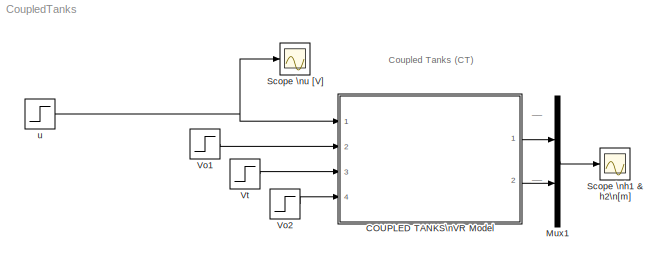
MODEL CoupledTanks
KIND model
CONFIG InitFcn = g = 9.81; %gravitational constant\n\n% showVR = 1; %show VR world\n% h1_init = 0; %initial condition\n% h2_init = 0; %initial condition
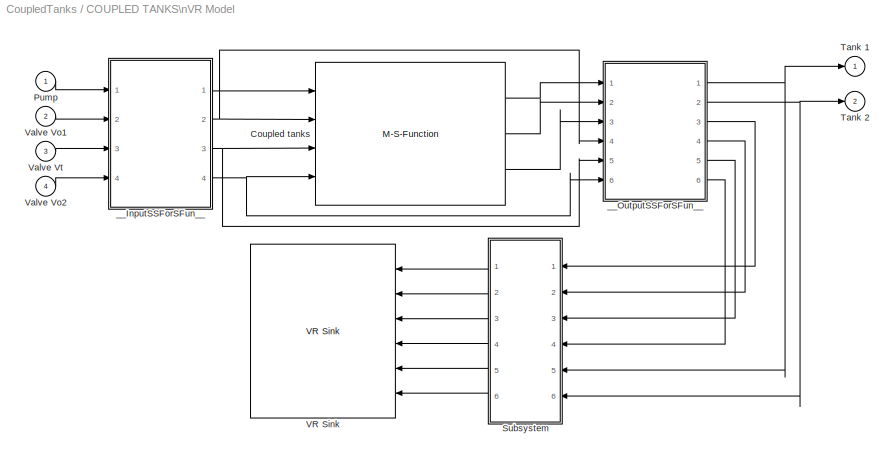
BLOCK [SubSystem] COUPLED TANKS\nVR Model
  FunctionWithSeparateData = off
  MaskCallbackString = if strcmp('off',get_param(gcb,'showVR'))\n    vrclose all;\nelse\n    if exist('figureVR')==0\n        figureVR = vrfigure;\n    end  \n    if exist('worldVR')==0\n        worldVR = vrworld('CoupledTanks_VR.WRL');\n    end\n	if isvalid(figureVR)==0\n        open(worldVR);\n        figureVR = vrfigure(worldVR,[650 80 550 350]);\n	end\nend||
  MaskDescription = Coupled Tanks (CT) in laboratory K26 - Virtual Reality\nReal-Time Workshop generated S-function.
  MaskDisplay = image(imread('CoupledTanks_Image.jpg'));\nport_label ('input',1,'u [V]');\nport_label ('input',2,'Vo1 [-]');\nport_label ('input',3,'Vt [-]');\nport_label ('input',4,'Vo2 [-]');\nport_label ('output',1,'h1 [m]');\nport_label ('output',2,'h2 [m]');
  MaskEnableString = on,on,on
  MaskHelp = Couple Tanks in laboratory K26 - Virtual Reality. <br><br>\n\n\nThis is a&nbsp;virtual model of the Coupled Tanks apparatus in Laboratory of automatic control \ntheory&nbsp;26 (<a href=\"http://support.dce.felk.cvut.cz/lab26/\" target=\"_blank\">http://support.dce.felk.cvut.cz/lab26/</a>), \nwhich consists of a&nbsp;gear-pump, two tanks (left and right), inflow and outflow pipes and transfer (V<su...<+1395ch>
  MaskHideContents = off
  MaskIconFrame = on
  MaskIconOpaque = on
  MaskIconRotate = none
  MaskIconUnits = autoscale
  MaskPortRotate = default
  MaskPromptString = Show VirtualWorld?|Initial fluid level in the left tank 1   h1(0)  [cm]|Initial fluid  level in the right tank 2   h2 (0) [cm]
  MaskStyleString = checkbox,edit,edit
  MaskToolTipString = on,on,on
  MaskTunableValueString = on,on,on
  MaskType = Coupled Tanks (CT) in laboratory K26
  MaskValueString = off|0|0
  MaskVariables = showVR=@1;sfcnParam1=@2;sfcnParam2=@3;
  MaskVisibilityString = on,on,on
  MinAlgLoopOccurrences = off
  Opaque = off
  Ports = [4, 2]
  PropExecContextOutsideSubsystem = off
  RTWSystemCode = Auto
  RequestExecContextInheritance = off
BLOCK [M-S-Function] COUPLED TANKS\nVR Model/Coupled tanks
  FunctionName = CoupledProngTanks
  MaskCallbackString = |
  MaskDisplay = port_label('input',1,'Pump');\nport_label('input',2,'Valve Vo1');\nport_label('input',3,'Valve Vt');\nport_label('input',4,'Valve Vo2');\nport_label('output',1,'Tank 1');\nport_label('output',2,'Tank 2');\nport_label('output',3,'q_i');
  MaskEnableString = on,on
  MaskIconFrame = on
  MaskIconOpaque = on
  MaskIconRotate = none
  MaskIconUnits = autoscale
  MaskPortRotate = default
  MaskPromptString = h1_init|h2_init
  MaskStyleString = edit,edit
  MaskToolTipString = on,on
  MaskTunableValueString = on,on
  MaskValueString = sfcnParam1|sfcnParam2
  MaskVariables = h10=@1;h20=@2;
  MaskVisibilityString = on,on
  Parameters = h10 h20
  Ports = [4, 3]
BLOCK [Inport] COUPLED TANKS\nVR Model/Pump
  IconDisplay = Port number
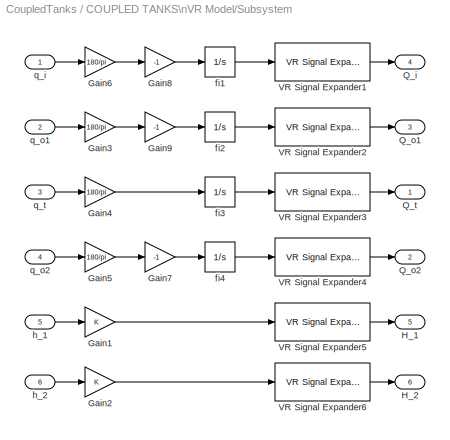
BLOCK [SubSystem] COUPLED TANKS\nVR Model/Subsystem
  FunctionWithSeparateData = off
  MaskHideContents = off
  MinAlgLoopOccurrences = off
  Opaque = off
  Ports = [6, 6]
  PropExecContextOutsideSubsystem = off
  RTWSystemCode = Auto
  RequestExecContextInheritance = off
BLOCK [Gain] COUPLED TANKS\nVR Model/Subsystem/Gain1
  OutDataTypeMode = Inherit via internal rule
  OutDataTypeStr = Inherit: Inherit via internal rule
  ParamDataTypeStr = Inherit: Inherit via internal rule
  ParameterDataTypeMode = Inherit via internal rule
  SaturateOnIntegerOverflow = off
BLOCK [Gain] COUPLED TANKS\nVR Model/Subsystem/Gain2
  OutDataTypeMode = Inherit via internal rule
  OutDataTypeStr = Inherit: Inherit via internal rule
  ParamDataTypeStr = Inherit: Inherit via internal rule
  ParameterDataTypeMode = Inherit via internal rule
  SaturateOnIntegerOverflow = off
BLOCK [Gain] COUPLED TANKS\nVR Model/Subsystem/Gain3
  Gain = 180/pi
  OutDataTypeMode = Inherit via internal rule
  OutDataTypeStr = Inherit: Inherit via internal rule
  ParamDataTypeStr = Inherit: Inherit via internal rule
  ParameterDataTypeMode = Inherit via internal rule
  SaturateOnIntegerOverflow = off
BLOCK [Gain] COUPLED TANKS\nVR Model/Subsystem/Gain4
  Gain = 180/pi
  OutDataTypeMode = Inherit via internal rule
  OutDataTypeStr = Inherit: Inherit via internal rule
  ParamDataTypeStr = Inherit: Inherit via internal rule
  ParameterDataTypeMode = Inherit via internal rule
  SaturateOnIntegerOverflow = off
BLOCK [Gain] COUPLED TANKS\nVR Model/Subsystem/Gain5
  Gain = 180/pi
  OutDataTypeMode = Inherit via internal rule
  OutDataTypeStr = Inherit: Inherit via internal rule
  ParamDataTypeStr = Inherit: Inherit via internal rule
  ParameterDataTypeMode = Inherit via internal rule
  SaturateOnIntegerOverflow = off
BLOCK [Gain] COUPLED TANKS\nVR Model/Subsystem/Gain6
  Gain = 180/pi
  OutDataTypeMode = Inherit via internal rule
  OutDataTypeStr = Inherit: Inherit via internal rule
  ParamDataTypeStr = Inherit: Inherit via internal rule
  ParameterDataTypeMode = Inherit via internal rule
  SaturateOnIntegerOverflow = off
BLOCK [Gain] COUPLED TANKS\nVR Model/Subsystem/Gain7
  Gain = -1
  OutDataTypeMode = Inherit via internal rule
  OutDataTypeStr = Inherit: Inherit via internal rule
  ParamDataTypeStr = Inherit: Inherit via internal rule
  ParameterDataTypeMode = Inherit via internal rule
  SaturateOnIntegerOverflow = off
BLOCK [Gain] COUPLED TANKS\nVR Model/Subsystem/Gain8
  Gain = -1
  OutDataTypeMode = Inherit via internal rule
  OutDataTypeStr = Inherit: Inherit via internal rule
  ParamDataTypeStr = Inherit: Inherit via internal rule
  ParameterDataTypeMode = Inherit via internal rule
  SaturateOnIntegerOverflow = off
BLOCK [Gain] COUPLED TANKS\nVR Model/Subsystem/Gain9
  Gain = -1
  OutDataTypeMode = Inherit via internal rule
  OutDataTypeStr = Inherit: Inherit via internal rule
  ParamDataTypeStr = Inherit: Inherit via internal rule
  ParameterDataTypeMode = Inherit via internal rule
  SaturateOnIntegerOverflow = off
BLOCK [Outport] COUPLED TANKS\nVR Model/Subsystem/H_1
  IconDisplay = Port number
  Port = 5
BLOCK [Outport] COUPLED TANKS\nVR Model/Subsystem/H_2
  IconDisplay = Port number
  Port = 6
BLOCK [Outport] COUPLED TANKS\nVR Model/Subsystem/Q_i
  IconDisplay = Port number
  Port = 4
BLOCK [Outport] COUPLED TANKS\nVR Model/Subsystem/Q_o1
  IconDisplay = Port number
  Port = 3
BLOCK [Outport] COUPLED TANKS\nVR Model/Subsystem/Q_o2
  IconDisplay = Port number
  Port = 2
BLOCK [Outport] COUPLED TANKS\nVR Model/Subsystem/Q_t
  IconDisplay = Port number
BLOCK [Reference] COUPLED TANKS\nVR Model/Subsystem/VR Signal Expander1  REF=vrlib/VR Signal Expander
  Ports = [1, 1]
  SourceBlock = vrlib/VR Signal Expander
  SourceType = VR Signal Expander
  outidx = [4]
  outwidth = 4
BLOCK [Reference] COUPLED TANKS\nVR Model/Subsystem/VR Signal Expander2  REF=vrlib/VR Signal Expander
  Ports = [1, 1]
  SourceBlock = vrlib/VR Signal Expander
  SourceType = VR Signal Expander
  outidx = [4]
  outwidth = 4
BLOCK [Reference] COUPLED TANKS\nVR Model/Subsystem/VR Signal Expander3  REF=vrlib/VR Signal Expander
  Ports = [1, 1]
  SourceBlock = vrlib/VR Signal Expander
  SourceType = VR Signal Expander
  outidx = [4]
  outwidth = 4
BLOCK [Reference] COUPLED TANKS\nVR Model/Subsystem/VR Signal Expander4  REF=vrlib/VR Signal Expander
  Ports = [1, 1]
  SourceBlock = vrlib/VR Signal Expander
  SourceType = VR Signal Expander
  outidx = [4]
  outwidth = 4
BLOCK [Reference] COUPLED TANKS\nVR Model/Subsystem/VR Signal Expander5  REF=vrlib/VR Signal Expander
  Ports = [1, 1]
  SourceBlock = vrlib/VR Signal Expander
  SourceType = VR Signal Expander
  outidx = [2]
  outwidth = 3
BLOCK [Reference] COUPLED TANKS\nVR Model/Subsystem/VR Signal Expander6  REF=vrlib/VR Signal Expander
  Ports = [1, 1]
  SourceBlock = vrlib/VR Signal Expander
  SourceType = VR Signal Expander
  outidx = [2]
  outwidth = 3
BLOCK [Integrator] COUPLED TANKS\nVR Model/Subsystem/fi1
  Ports = [1, 1]
BLOCK [Integrator] COUPLED TANKS\nVR Model/Subsystem/fi2
  Ports = [1, 1]
BLOCK [Integrator] COUPLED TANKS\nVR Model/Subsystem/fi3
  Ports = [1, 1]
BLOCK [Integrator] COUPLED TANKS\nVR Model/Subsystem/fi4
  Ports = [1, 1]
BLOCK [Inport] COUPLED TANKS\nVR Model/Subsystem/h_1
  IconDisplay = Port number
  Port = 5
BLOCK [Inport] COUPLED TANKS\nVR Model/Subsystem/h_2
  IconDisplay = Port number
  Port = 6
BLOCK [Inport] COUPLED TANKS\nVR Model/Subsystem/q_i
  IconDisplay = Port number
BLOCK [Inport] COUPLED TANKS\nVR Model/Subsystem/q_o1
  IconDisplay = Port number
  Port = 2
BLOCK [Inport] COUPLED TANKS\nVR Model/Subsystem/q_o2
  IconDisplay = Port number
  Port = 4
BLOCK [Inport] COUPLED TANKS\nVR Model/Subsystem/q_t
  IconDisplay = Port number
  Port = 3
BLOCK [Outport] COUPLED TANKS\nVR Model/Tank 1
  DataType = double
  IconDisplay = Port number
  OutDataTypeStr = double
  PortDimensions = 1
  SampleTime = [-1 0]
  SignalType = real
BLOCK [Outport] COUPLED TANKS\nVR Model/Tank 2
  DataType = double
  IconDisplay = Port number
  OutDataTypeStr = double
  Port = 2
  PortDimensions = 1
  SampleTime = [-1 0]
  SignalType = real
BLOCK [Reference] COUPLED TANKS\nVR Model/VR Sink  REF=vrlib/VR Sink
  AutoView = off
  FieldsWritten = Valve_t.rotation.4.1.double#Valve_o2.rotation.4.1.double#Valve_o1.rotation.4.1.double#Pump.rotation.4.1.double#water1.scale.3.1.double#water2.scale.3.1.double
  InstantiateOnLoad = on
  Ports = [6]
  RemoteChange = off
  RemoteView = on
  SampleTime = -1
  SourceBlock = vrlib/VR Sink
  SourceType = Virtual Reality Sink
  VideoDimensions = []
  ViewEnable = on
  WorldFileName = CoupledTanks_VR.WRL
BLOCK [Inport] COUPLED TANKS\nVR Model/Valve Vo1
  IconDisplay = Port number
  Port = 2
BLOCK [Inport] COUPLED TANKS\nVR Model/Valve Vo2
  IconDisplay = Port number
  Port = 4
BLOCK [Inport] COUPLED TANKS\nVR Model/Valve Vt
  IconDisplay = Port number
  Port = 3
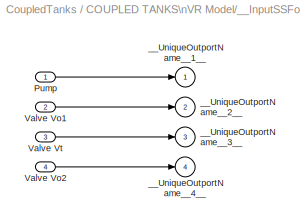
BLOCK [SubSystem] COUPLED TANKS\nVR Model/__InputSSForSFun__
  FunctionWithSeparateData = off
  MaskHideContents = off
  MinAlgLoopOccurrences = off
  Opaque = off
  PermitHierarchicalResolution = ParametersOnly
  Ports = [4, 4]
  PropExecContextOutsideSubsystem = off
  RTWSystemCode = Auto
  RequestExecContextInheritance = off
BLOCK [Inport] COUPLED TANKS\nVR Model/__InputSSForSFun__/Pump
  IconDisplay = Port number
BLOCK [Inport] COUPLED TANKS\nVR Model/__InputSSForSFun__/Valve Vo1
  IconDisplay = Port number
  Port = 2
BLOCK [Inport] COUPLED TANKS\nVR Model/__InputSSForSFun__/Valve Vo2
  IconDisplay = Port number
  Port = 4
BLOCK [Inport] COUPLED TANKS\nVR Model/__InputSSForSFun__/Valve Vt
  IconDisplay = Port number
  Port = 3
BLOCK [Outport] COUPLED TANKS\nVR Model/__InputSSForSFun__/__UniqueOutportName__1__
  IconDisplay = Port number
BLOCK [Outport] COUPLED TANKS\nVR Model/__InputSSForSFun__/__UniqueOutportName__2__
  IconDisplay = Port number
  Port = 2
BLOCK [Outport] COUPLED TANKS\nVR Model/__InputSSForSFun__/__UniqueOutportName__3__
  IconDisplay = Port number
  Port = 3
BLOCK [Outport] COUPLED TANKS\nVR Model/__InputSSForSFun__/__UniqueOutportName__4__
  IconDisplay = Port number
  Port = 4
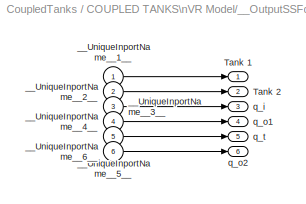
BLOCK [SubSystem] COUPLED TANKS\nVR Model/__OutputSSForSFun__
  FunctionWithSeparateData = off
  MaskHideContents = off
  MinAlgLoopOccurrences = off
  Opaque = off
  PermitHierarchicalResolution = ParametersOnly
  Ports = [6, 6]
  PropExecContextOutsideSubsystem = off
  RTWSystemCode = Auto
  RequestExecContextInheritance = off
BLOCK [Outport] COUPLED TANKS\nVR Model/__OutputSSForSFun__/Tank 1
  DataType = double
  IconDisplay = Port number
  OutDataTypeStr = double
  PortDimensions = 1
  SampleTime = [-1 0]
  SignalType = real
BLOCK [Outport] COUPLED TANKS\nVR Model/__OutputSSForSFun__/Tank 2
  DataType = double
  IconDisplay = Port number
  OutDataTypeStr = double
  Port = 2
  PortDimensions = 1
  SampleTime = [-1 0]
  SignalType = real
BLOCK [Inport] COUPLED TANKS\nVR Model/__OutputSSForSFun__/__UniqueInportName__1__
  IconDisplay = Port number
BLOCK [Inport] COUPLED TANKS\nVR Model/__OutputSSForSFun__/__UniqueInportName__2__
  IconDisplay = Port number
  Port = 2
BLOCK [Inport] COUPLED TANKS\nVR Model/__OutputSSForSFun__/__UniqueInportName__3__
  IconDisplay = Port number
  Port = 3
BLOCK [Inport] COUPLED TANKS\nVR Model/__OutputSSForSFun__/__UniqueInportName__4__
  IconDisplay = Port number
  Port = 4
BLOCK [Inport] COUPLED TANKS\nVR Model/__OutputSSForSFun__/__UniqueInportName__5__
  IconDisplay = Port number
  Port = 5
BLOCK [Inport] COUPLED TANKS\nVR Model/__OutputSSForSFun__/__UniqueInportName__6__
  IconDisplay = Port number
  Port = 6
BLOCK [Outport] COUPLED TANKS\nVR Model/__OutputSSForSFun__/q_i
  DataType = double
  IconDisplay = Port number
  OutDataTypeStr = double
  Port = 3
  PortDimensions = 1
  SampleTime = [0 1]
  SignalType = real
BLOCK [Outport] COUPLED TANKS\nVR Model/__OutputSSForSFun__/q_o1
  DataType = double
  IconDisplay = Port number
  OutDataTypeStr = double
  Port = 4
  PortDimensions = 1
  SampleTime = [-1 0]
  SignalType = real
BLOCK [Outport] COUPLED TANKS\nVR Model/__OutputSSForSFun__/q_o2
  DataType = double
  IconDisplay = Port number
  OutDataTypeStr = double
  Port = 6
  PortDimensions = 1
  SampleTime = [-1 0]
  SignalType = real
BLOCK [Outport] COUPLED TANKS\nVR Model/__OutputSSForSFun__/q_t
  DataType = double
  IconDisplay = Port number
  OutDataTypeStr = double
  Port = 5
  PortDimensions = 1
  SampleTime = [-1 0]
  SignalType = real
BLOCK [Mux] Mux1
  DisplayOption = bar
  Inputs = 2
  Ports = [2, 1]
BLOCK [Scope] Scope \nh1 & h2\n[m]
  Floating = off
  MaxDataPoints = 500000
  NumInputPorts = 1
  Ports = [1]
  SampleTime = 0
  SaveName = ty
  SaveToWorkspace = on
  TimeRange = 200
  YMax = 25
  YMin = 0
BLOCK [Scope] Scope \nu [V]
  Floating = off
  MaxDataPoints = 500000
  NumInputPorts = 1
  Ports = [1]
  SampleTime = 0
  SaveName = tu
  SaveToWorkspace = on
  TimeRange = 2000
  YMin = 5
BLOCK [Step] Vo1
  After = 0.1
  SampleTime = 0
  Time = 0
BLOCK [Step] Vo2
  After = 0.3
  SampleTime = 0
  Time = 0
BLOCK [Step] Vt
  After = 0.2
  SampleTime = 0
  Time = 0
BLOCK [Step] u
  After = 5*1.05
  Before = 5
  SampleTime = 0
  Time = 1000
ANNOTATION (root): Coupled Tanks (CT)
ANNOTATION (root): __
LINE COUPLED TANKS\nVR Model/Coupled tanks:1 -> COUPLED TANKS\nVR Model/__OutputSSForSFun__:1
LINE COUPLED TANKS\nVR Model/Coupled tanks:2 -> COUPLED TANKS\nVR Model/__OutputSSForSFun__:2
LINE COUPLED TANKS\nVR Model/Coupled tanks:3 -> COUPLED TANKS\nVR Model/__OutputSSForSFun__:3
LINE COUPLED TANKS\nVR Model/Pump:1 -> COUPLED TANKS\nVR Model/__InputSSForSFun__:1
LINE COUPLED TANKS\nVR Model/Subsystem/Gain1:1 -> COUPLED TANKS\nVR Model/Subsystem/VR Signal Expander5:1
LINE COUPLED TANKS\nVR Model/Subsystem/Gain2:1 -> COUPLED TANKS\nVR Model/Subsystem/VR Signal Expander6:1
LINE COUPLED TANKS\nVR Model/Subsystem/Gain3:1 -> COUPLED TANKS\nVR Model/Subsystem/Gain9:1
LINE COUPLED TANKS\nVR Model/Subsystem/Gain4:1 -> COUPLED TANKS\nVR Model/Subsystem/fi3:1
LINE COUPLED TANKS\nVR Model/Subsystem/Gain5:1 -> COUPLED TANKS\nVR Model/Subsystem/Gain7:1
LINE COUPLED TANKS\nVR Model/Subsystem/Gain6:1 -> COUPLED TANKS\nVR Model/Subsystem/Gain8:1
LINE COUPLED TANKS\nVR Model/Subsystem/Gain7:1 -> COUPLED TANKS\nVR Model/Subsystem/fi4:1
LINE COUPLED TANKS\nVR Model/Subsystem/Gain8:1 -> COUPLED TANKS\nVR Model/Subsystem/fi1:1
LINE COUPLED TANKS\nVR Model/Subsystem/Gain9:1 -> COUPLED TANKS\nVR Model/Subsystem/fi2:1
LINE COUPLED TANKS\nVR Model/Subsystem/VR Signal Expander1:1 -> COUPLED TANKS\nVR Model/Subsystem/Q_i:1
LINE COUPLED TANKS\nVR Model/Subsystem/VR Signal Expander2:1 -> COUPLED TANKS\nVR Model/Subsystem/Q_o1:1
LINE COUPLED TANKS\nVR Model/Subsystem/VR Signal Expander3:1 -> COUPLED TANKS\nVR Model/Subsystem/Q_t:1
LINE COUPLED TANKS\nVR Model/Subsystem/VR Signal Expander4:1 -> COUPLED TANKS\nVR Model/Subsystem/Q_o2:1
LINE COUPLED TANKS\nVR Model/Subsystem/VR Signal Expander5:1 -> COUPLED TANKS\nVR Model/Subsystem/H_1:1
LINE COUPLED TANKS\nVR Model/Subsystem/VR Signal Expander6:1 -> COUPLED TANKS\nVR Model/Subsystem/H_2:1
LINE COUPLED TANKS\nVR Model/Subsystem/fi1:1 -> COUPLED TANKS\nVR Model/Subsystem/VR Signal Expander1:1
LINE COUPLED TANKS\nVR Model/Subsystem/fi2:1 -> COUPLED TANKS\nVR Model/Subsystem/VR Signal Expander2:1
LINE COUPLED TANKS\nVR Model/Subsystem/fi3:1 -> COUPLED TANKS\nVR Model/Subsystem/VR Signal Expander3:1
LINE COUPLED TANKS\nVR Model/Subsystem/fi4:1 -> COUPLED TANKS\nVR Model/Subsystem/VR Signal Expander4:1
LINE COUPLED TANKS\nVR Model/Subsystem/h_1:1 -> COUPLED TANKS\nVR Model/Subsystem/Gain1:1
LINE COUPLED TANKS\nVR Model/Subsystem/h_2:1 -> COUPLED TANKS\nVR Model/Subsystem/Gain2:1
LINE COUPLED TANKS\nVR Model/Subsystem/q_i:1 -> COUPLED TANKS\nVR Model/Subsystem/Gain6:1
LINE COUPLED TANKS\nVR Model/Subsystem/q_o1:1 -> COUPLED TANKS\nVR Model/Subsystem/Gain3:1
LINE COUPLED TANKS\nVR Model/Subsystem/q_o2:1 -> COUPLED TANKS\nVR Model/Subsystem/Gain5:1
LINE COUPLED TANKS\nVR Model/Subsystem/q_t:1 -> COUPLED TANKS\nVR Model/Subsystem/Gain4:1
LINE COUPLED TANKS\nVR Model/Subsystem:1 -> COUPLED TANKS\nVR Model/VR Sink:1
LINE COUPLED TANKS\nVR Model/Subsystem:2 -> COUPLED TANKS\nVR Model/VR Sink:2
LINE COUPLED TANKS\nVR Model/Subsystem:3 -> COUPLED TANKS\nVR Model/VR Sink:3
LINE COUPLED TANKS\nVR Model/Subsystem:4 -> COUPLED TANKS\nVR Model/VR Sink:4
LINE COUPLED TANKS\nVR Model/Subsystem:5 -> COUPLED TANKS\nVR Model/VR Sink:5
LINE COUPLED TANKS\nVR Model/Subsystem:6 -> COUPLED TANKS\nVR Model/VR Sink:6
LINE COUPLED TANKS\nVR Model/Valve Vo1:1 -> COUPLED TANKS\nVR Model/__InputSSForSFun__:2
LINE COUPLED TANKS\nVR Model/Valve Vo2:1 -> COUPLED TANKS\nVR Model/__InputSSForSFun__:4
LINE COUPLED TANKS\nVR Model/Valve Vt:1 -> COUPLED TANKS\nVR Model/__InputSSForSFun__:3
LINE COUPLED TANKS\nVR Model/__InputSSForSFun__/Pump:1 -> COUPLED TANKS\nVR Model/__InputSSForSFun__/__UniqueOutportName__1__:1
LINE COUPLED TANKS\nVR Model/__InputSSForSFun__/Valve Vo1:1 -> COUPLED TANKS\nVR Model/__InputSSForSFun__/__UniqueOutportName__2__:1
LINE COUPLED TANKS\nVR Model/__InputSSForSFun__/Valve Vo2:1 -> COUPLED TANKS\nVR Model/__InputSSForSFun__/__UniqueOutportName__4__:1
LINE COUPLED TANKS\nVR Model/__InputSSForSFun__/Valve Vt:1 -> COUPLED TANKS\nVR Model/__InputSSForSFun__/__UniqueOutportName__3__:1
LINE COUPLED TANKS\nVR Model/__InputSSForSFun__:1 -> COUPLED TANKS\nVR Model/Coupled tanks:1
NET COUPLED TANKS\nVR Model/__InputSSForSFun__:2 -> COUPLED TANKS\nVR Model/Coupled tanks:2, COUPLED TANKS\nVR Model/__OutputSSForSFun__:4
NET COUPLED TANKS\nVR Model/__InputSSForSFun__:3 -> COUPLED TANKS\nVR Model/Coupled tanks:3, COUPLED TANKS\nVR Model/__OutputSSForSFun__:5
NET COUPLED TANKS\nVR Model/__InputSSForSFun__:4 -> COUPLED TANKS\nVR Model/Coupled tanks:4, COUPLED TANKS\nVR Model/__OutputSSForSFun__:6
LINE COUPLED TANKS\nVR Model/__OutputSSForSFun__/__UniqueInportName__1__:1 -> COUPLED TANKS\nVR Model/__OutputSSForSFun__/Tank 1:1
LINE COUPLED TANKS\nVR Model/__OutputSSForSFun__/__UniqueInportName__2__:1 -> COUPLED TANKS\nVR Model/__OutputSSForSFun__/Tank 2:1
LINE COUPLED TANKS\nVR Model/__OutputSSForSFun__/__UniqueInportName__3__:1 -> COUPLED TANKS\nVR Model/__OutputSSForSFun__/q_i:1
LINE COUPLED TANKS\nVR Model/__OutputSSForSFun__/__UniqueInportName__4__:1 -> COUPLED TANKS\nVR Model/__OutputSSForSFun__/q_o1:1
LINE COUPLED TANKS\nVR Model/__OutputSSForSFun__/__UniqueInportName__5__:1 -> COUPLED TANKS\nVR Model/__OutputSSForSFun__/q_t:1
LINE COUPLED TANKS\nVR Model/__OutputSSForSFun__/__UniqueInportName__6__:1 -> COUPLED TANKS\nVR Model/__OutputSSForSFun__/q_o2:1
NET COUPLED TANKS\nVR Model/__OutputSSForSFun__:1 -> COUPLED TANKS\nVR Model/Subsystem:5, COUPLED TANKS\nVR Model/Tank 1:1
NET COUPLED TANKS\nVR Model/__OutputSSForSFun__:2 -> COUPLED TANKS\nVR Model/Subsystem:6, COUPLED TANKS\nVR Model/Tank 2:1
LINE COUPLED TANKS\nVR Model/__OutputSSForSFun__:3 -> COUPLED TANKS\nVR Model/Subsystem:1
LINE COUPLED TANKS\nVR Model/__OutputSSForSFun__:4 -> COUPLED TANKS\nVR Model/Subsystem:2
LINE COUPLED TANKS\nVR Model/__OutputSSForSFun__:5 -> COUPLED TANKS\nVR Model/Subsystem:3
LINE COUPLED TANKS\nVR Model/__OutputSSForSFun__:6 -> COUPLED TANKS\nVR Model/Subsystem:4
LINE COUPLED TANKS\nVR Model:1 -> Mux1:1
LINE COUPLED TANKS\nVR Model:2 -> Mux1:2
LINE Mux1:1 -> Scope \nh1 & h2\n[m]:1
LINE Vo1:1 -> COUPLED TANKS\nVR Model:2
LINE Vo2:1 -> COUPLED TANKS\nVR Model:4
LINE Vt:1 -> COUPLED TANKS\nVR Model:3
NET u:1 -> COUPLED TANKS\nVR Model:1, Scope \nu [V]:1
note: NET lines group one-source signal fan-out (src -> all destinations, sorted); 1:1 wires keep LINE
